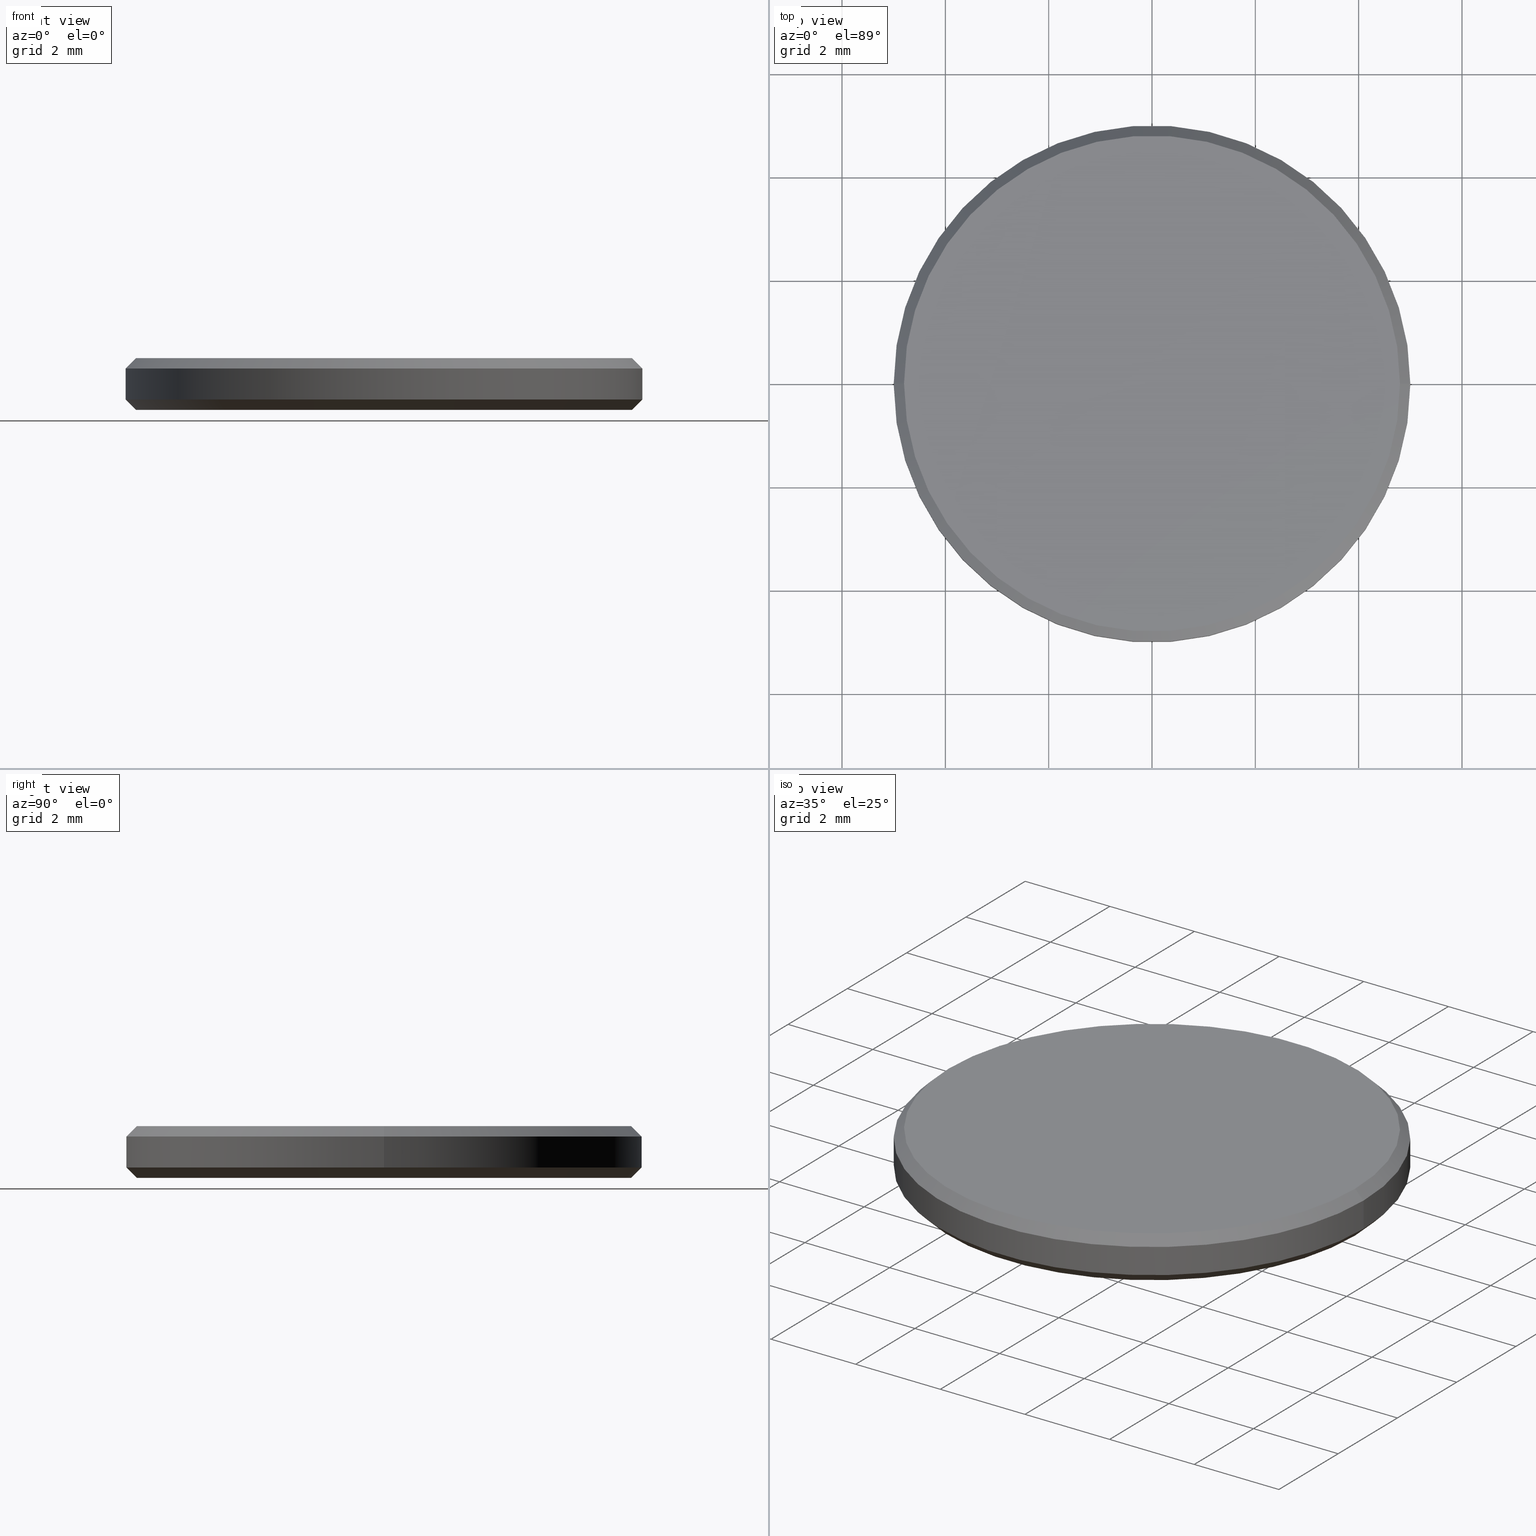
[diagram: canonical four-view strip — front | top / right | iso, engineering-drawing reading convention]
A machine part, canonical four-view strip (front | top / right | iso — engineering-drawing reading convention). The complete STEP part file that produces these views, byte-faithful:
ISO-10303-21;
HEADER;
FILE_DESCRIPTION (( 'STEP AP214' ),
    '1' );
FILE_NAME ('GNIF-070-3860-D10.STEP',
    '2024-07-19T14:40:39',
    ( '' ),
    ( '' ),
    'SwSTEP 2.0',
    'SolidWorks 2022',
    '' );
FILE_SCHEMA (( 'AUTOMOTIVE_DESIGN' ));
ENDSEC;

DATA;
#1 = SHAPE_DEFINITION_REPRESENTATION ( #181, #68 ) ;
#2 = VECTOR ( 'NONE', #190, 1000.000000000000114 ) ;
#3 = AXIS2_PLACEMENT_3D ( 'NONE', #140, #199, #122 ) ;
#4 =( NAMED_UNIT ( * ) SI_UNIT ( $, .STERADIAN. ) SOLID_ANGLE_UNIT ( ) );
#5 = DIRECTION ( 'NONE',  ( 0.7071067811865490160, 0.000000000000000000, 0.7071067811865459074 ) ) ;
#6 = CARTESIAN_POINT ( 'NONE',  ( 0.000000000000000000, 0.000000000000000000, 0.000000000000000000 ) ) ;
#7 = DIRECTION ( 'NONE',  ( 0.000000000000000000, 0.000000000000000000, 1.000000000000000000 ) ) ;
#8 = DIRECTION ( 'NONE',  ( -0.000000000000000000, -0.000000000000000000, -1.000000000000000000 ) ) ;
#9 = ORIENTED_EDGE ( 'NONE', *, *, #73, .F. ) ;
#10 = VECTOR ( 'NONE', #84, 1000.000000000000114 ) ;
#11 = EDGE_CURVE ( 'NONE', #164, #35, #213, .T. ) ;
#12 = DIRECTION ( 'NONE',  ( -0.7071067811865490160, 8.659560562354950115E-17, 0.7071067811865459074 ) ) ;
#13 = DIRECTION ( 'NONE',  ( -1.000000000000000000, 0.000000000000000000, 0.000000000000000000 ) ) ;
#14 = PRODUCT_DEFINITION_CONTEXT ( 'detailed design', #180, 'design' ) ;
#15 = ADVANCED_FACE ( 'NONE', ( #116 ), #16, .T. ) ;
#16 = CONICAL_SURFACE ( 'NONE', #155, 5.000000000000000000, 0.7853981633974503884 ) ;
#17 = DIRECTION ( 'NONE',  ( 1.000000000000000000, 0.000000000000000000, 0.000000000000000000 ) ) ;
#18 = DIRECTION ( 'NONE',  ( 0.000000000000000000, 0.000000000000000000, -1.000000000000000000 ) ) ;
#19 = ORIENTED_EDGE ( 'NONE', *, *, #46, .F. ) ;
#20 = EDGE_CURVE ( 'NONE', #35, #164, #21, .T. ) ;
#21 = CIRCLE ( 'NONE', #65, 5.000000000000000000 ) ;
#22 = ORIENTED_EDGE ( 'NONE', *, *, #223, .T. ) ;
#23 = CARTESIAN_POINT ( 'NONE',  ( 0.000000000000000000, 0.000000000000000000, 1.000000000000000000 ) ) ;
#24 = DIRECTION ( 'NONE',  ( 0.000000000000000000, 0.000000000000000000, 1.000000000000000000 ) ) ;
#25 = LINE ( 'NONE', #134, #10 ) ;
#26 = STYLED_ITEM ( 'NONE', ( #212 ), #205 ) ;
#27 = EDGE_LOOP ( 'NONE', ( #108, #36, #220, #22 ) ) ;
#28 = EDGE_CURVE ( 'NONE', #145, #163, #94, .T. ) ;
#29 = DIRECTION ( 'NONE',  ( 1.000000000000000000, 0.000000000000000000, 0.000000000000000000 ) ) ;
#30 = CARTESIAN_POINT ( 'NONE',  ( 0.000000000000000000, 0.000000000000000000, 1.000000000000000000 ) ) ;
#31 = DIRECTION ( 'NONE',  ( -0.000000000000000000, -0.000000000000000000, 1.000000000000000000 ) ) ;
#32 = FACE_OUTER_BOUND ( 'NONE', #27, .T. ) ;
#33 = AXIS2_PLACEMENT_3D ( 'NONE', #30, #102, #13 ) ;
#34 = CIRCLE ( 'NONE', #193, 4.800000000000002487 ) ;
#35 = VERTEX_POINT ( 'NONE', #45 ) ;
#36 = ORIENTED_EDGE ( 'NONE', *, *, #20, .T. ) ;
#37 = ORIENTED_EDGE ( 'NONE', *, *, #138, .F. ) ;
#38 = VECTOR ( 'NONE', #178, 1000.000000000000000 ) ;
#39 = AXIS2_PLACEMENT_3D ( 'NONE', #153, #150, #173 ) ;
#40 = ORIENTED_EDGE ( 'NONE', *, *, #11, .F. ) ;
#41 = CARTESIAN_POINT ( 'NONE',  ( 0.000000000000000000, 0.000000000000000000, 1.000000000000000000 ) ) ;
#42 =( NAMED_UNIT ( * ) PLANE_ANGLE_UNIT ( ) SI_UNIT ( $, .RADIAN. ) );
#43 = CARTESIAN_POINT ( 'NONE',  ( 0.000000000000000000, 0.000000000000000000, 0.1999999999999996503 ) ) ;
#44 = VECTOR ( 'NONE', #5, 1000.000000000000000 ) ;
#45 = CARTESIAN_POINT ( 'NONE',  ( 5.000000000000000000, 6.123233995736766282E-16, 0.8000000000000012657 ) ) ;
#46 = EDGE_CURVE ( 'NONE', #56, #164, #25, .T. ) ;
#47 = CYLINDRICAL_SURFACE ( 'NONE', #226, 5.000000000000000000 ) ;
#48 = UNCERTAINTY_MEASURE_WITH_UNIT (LENGTH_MEASURE( 1.000000000000000082E-05 ), #139, 'distance_accuracy_value', 'NONE');
#49 = CARTESIAN_POINT ( 'NONE',  ( -4.799999999999999822, 6.000769315822029754E-16, 0.000000000000000000 ) ) ;
#50 = DIRECTION ( 'NONE',  ( 0.000000000000000000, 0.000000000000000000, 1.000000000000000000 ) ) ;
#51 = CARTESIAN_POINT ( 'NONE',  ( 0.000000000000000000, 0.000000000000000000, 1.000000000000000000 ) ) ;
#52 = PRESENTATION_LAYER_ASSIGNMENT (  '', '', ( #26 ) ) ;
#53 =( LENGTH_UNIT ( ) NAMED_UNIT ( * ) SI_UNIT ( .MILLI., .METRE. ) );
#54 = ORIENTED_EDGE ( 'NONE', *, *, #28, .T. ) ;
#55 = PRODUCT_CONTEXT ( 'NONE', #225, 'mechanical' ) ;
#56 = VERTEX_POINT ( 'NONE', #206 ) ;
#57 = MECHANICAL_DESIGN_GEOMETRIC_PRESENTATION_REPRESENTATION (  '', ( #152 ), #105 ) ;
#58 = FILL_AREA_STYLE ('',( #165 ) ) ;
#59 = DIRECTION ( 'NONE',  ( -0.000000000000000000, -0.000000000000000000, 1.000000000000000000 ) ) ;
#60 = APPLICATION_PROTOCOL_DEFINITION ( 'draft international standard', 'automotive_design', 1998, #180 ) ;
#61 = CLOSED_SHELL ( 'NONE', ( #15, #154, #149, #217, #103, #113, #176, #233 ) ) ;
#62 = DIRECTION ( 'NONE',  ( 0.000000000000000000, 0.000000000000000000, -1.000000000000000000 ) ) ;
#63 = EDGE_CURVE ( 'NONE', #145, #128, #101, .T. ) ;
#64 = CIRCLE ( 'NONE', #123, 4.800000000000002487 ) ;
#65 = AXIS2_PLACEMENT_3D ( 'NONE', #81, #62, #99 ) ;
#66 = COLOUR_RGB ( '',1.000000000000000000, 1.000000000000000000, 1.000000000000000000 ) ;
#67 = LINE ( 'NONE', #232, #148 ) ;
#68 = ADVANCED_BREP_SHAPE_REPRESENTATION ( 'GNIF-070-3860-D10', ( #205, #222 ), #127 ) ;
#69 = CARTESIAN_POINT ( 'NONE',  ( -5.000000000000000000, 0.000000000000000000, 0.8000000000000012657 ) ) ;
#70 = UNCERTAINTY_MEASURE_WITH_UNIT (LENGTH_MEASURE( 1.000000000000000082E-05 ), #53, 'distance_accuracy_value', 'NONE');
#71 = CARTESIAN_POINT ( 'NONE',  ( -5.000000000000000000, 0.000000000000000000, 0.1999999999999996503 ) ) ;
#72 = ORIENTED_EDGE ( 'NONE', *, *, #131, .F. ) ;
#73 = EDGE_CURVE ( 'NONE', #164, #201, #169, .T. ) ;
#74 = AXIS2_PLACEMENT_3D ( 'NONE', #227, #7, #115 ) ;
#75 = PRODUCT ( 'GNIF-070-3860-D10', 'GNIF-070-3860-D10', '', ( #55 ) ) ;
#76 = CARTESIAN_POINT ( 'NONE',  ( 0.000000000000000000, 0.000000000000000000, 1.000000000000000000 ) ) ;
#77 = EDGE_LOOP ( 'NONE', ( #79, #239 ) ) ;
#78 = SURFACE_STYLE_USAGE ( .BOTH. , #142 ) ;
#79 = ORIENTED_EDGE ( 'NONE', *, *, #194, .T. ) ;
#80 = CIRCLE ( 'NONE', #207, 5.000000000000000000 ) ;
#81 = CARTESIAN_POINT ( 'NONE',  ( 0.000000000000000000, 0.000000000000000000, 0.8000000000000012657 ) ) ;
#82 = SURFACE_STYLE_USAGE ( .BOTH. , #168 ) ;
#83 = PRODUCT_DEFINITION ( 'δ֪', '', #117, #14 ) ;
#84 = DIRECTION ( 'NONE',  ( -0.7071067811865460184, 0.000000000000000000, -0.7071067811865489050 ) ) ;
#85 = EDGE_LOOP ( 'NONE', ( #54, #240 ) ) ;
#86 = FACE_OUTER_BOUND ( 'NONE', #98, .T. ) ;
#87 = LINE ( 'NONE', #120, #2 ) ;
#88 = PRESENTATION_LAYER_ASSIGNMENT (  '', '', ( #152 ) ) ;
#89 = DIRECTION ( 'NONE',  ( -1.000000000000000000, 0.000000000000000000, 0.000000000000000000 ) ) ;
#90 = CARTESIAN_POINT ( 'NONE',  ( 4.799999999999999822, 0.000000000000000000, 0.000000000000000000 ) ) ;
#91 = CARTESIAN_POINT ( 'NONE',  ( 0.000000000000000000, 0.000000000000000000, 1.000000000000000000 ) ) ;
#92 = EDGE_LOOP ( 'NONE', ( #37, #159, #200, #237 ) ) ;
#93 = ORIENTED_EDGE ( 'NONE', *, *, #194, .F. ) ;
#94 = CIRCLE ( 'NONE', #229, 4.799999999999999822 ) ;
#95 = AXIS2_PLACEMENT_3D ( 'NONE', #216, #195, #17 ) ;
#96 = DIRECTION ( 'NONE',  ( 1.000000000000000000, 0.000000000000000000, 0.000000000000000000 ) ) ;
#97 = EDGE_CURVE ( 'NONE', #163, #145, #177, .T. ) ;
#98 = EDGE_LOOP ( 'NONE', ( #126, #235, #218, #9 ) ) ;
#99 = DIRECTION ( 'NONE',  ( 1.000000000000000000, 0.000000000000000000, 0.000000000000000000 ) ) ;
#100 = AXIS2_PLACEMENT_3D ( 'NONE', #91, #196, #191 ) ;
#101 = LINE ( 'NONE', #118, #44 ) ;
#102 = DIRECTION ( 'NONE',  ( 0.000000000000000000, 0.000000000000000000, -1.000000000000000000 ) ) ;
#103 = ADVANCED_FACE ( 'NONE', ( #228 ), #137, .T. ) ;
#104 = CYLINDRICAL_SURFACE ( 'NONE', #100, 5.000000000000000000 ) ;
#105 =( GEOMETRIC_REPRESENTATION_CONTEXT ( 3 ) GLOBAL_UNCERTAINTY_ASSIGNED_CONTEXT ( ( #189 ) ) GLOBAL_UNIT_ASSIGNED_CONTEXT ( ( #171, #42, #4 ) ) REPRESENTATION_CONTEXT ( 'NONE', 'WORKASPACE' ) );
#106 =( NAMED_UNIT ( * ) SI_UNIT ( $, .STERADIAN. ) SOLID_ANGLE_UNIT ( ) );
#107 = ORIENTED_EDGE ( 'NONE', *, *, #172, .F. ) ;
#108 = ORIENTED_EDGE ( 'NONE', *, *, #204, .F. ) ;
#109 =( NAMED_UNIT ( * ) PLANE_ANGLE_UNIT ( ) SI_UNIT ( $, .RADIAN. ) );
#110 = ORIENTED_EDGE ( 'NONE', *, *, #138, .T. ) ;
#111 = SURFACE_STYLE_FILL_AREA ( #58 ) ;
#112 = ORIENTED_EDGE ( 'NONE', *, *, #63, .F. ) ;
#113 = ADVANCED_FACE ( 'NONE', ( #114 ), #184, .F. ) ;
#114 = FACE_OUTER_BOUND ( 'NONE', #85, .T. ) ;
#115 = DIRECTION ( 'NONE',  ( 1.000000000000000000, 0.000000000000000000, -0.000000000000000000 ) ) ;
#116 = FACE_OUTER_BOUND ( 'NONE', #144, .T. ) ;
#117 = PRODUCT_DEFINITION_FORMATION_WITH_SPECIFIED_SOURCE ( '�κ�', '', #75, .NOT_KNOWN. ) ;
#118 = CARTESIAN_POINT ( 'NONE',  ( 5.000000000000000000, 0.000000000000000000, 0.1999999999999996503 ) ) ;
#119 = DIRECTION ( 'NONE',  ( -1.000000000000000000, 0.000000000000000000, 0.000000000000000000 ) ) ;
#120 = CARTESIAN_POINT ( 'NONE',  ( 4.800000000000002487, 5.878304635907297169E-16, 1.000000000000000000 ) ) ;
#121 = EDGE_CURVE ( 'NONE', #128, #201, #80, .T. ) ;
#122 = DIRECTION ( 'NONE',  ( 1.000000000000000000, 0.000000000000000000, 0.000000000000000000 ) ) ;
#123 = AXIS2_PLACEMENT_3D ( 'NONE', #76, #50, #160 ) ;
#124 =( NAMED_UNIT ( * ) PLANE_ANGLE_UNIT ( ) SI_UNIT ( $, .RADIAN. ) );
#125 = ORIENTED_EDGE ( 'NONE', *, *, #46, .T. ) ;
#126 = ORIENTED_EDGE ( 'NONE', *, *, #11, .T. ) ;
#127 =( GEOMETRIC_REPRESENTATION_CONTEXT ( 3 ) GLOBAL_UNCERTAINTY_ASSIGNED_CONTEXT ( ( #70 ) ) GLOBAL_UNIT_ASSIGNED_CONTEXT ( ( #53, #109, #106 ) ) REPRESENTATION_CONTEXT ( 'NONE', 'WORKASPACE' ) );
#128 = VERTEX_POINT ( 'NONE', #211 ) ;
#129 = CARTESIAN_POINT ( 'NONE',  ( -5.000000000000000000, 0.000000000000000000, 1.000000000000000000 ) ) ;
#130 = PRESENTATION_STYLE_ASSIGNMENT (( #82 ) ) ;
#131 = EDGE_CURVE ( 'NONE', #183, #56, #34, .T. ) ;
#132 = DIRECTION ( 'NONE',  ( 1.000000000000000000, 0.000000000000000000, 0.000000000000000000 ) ) ;
#133 = DIRECTION ( 'NONE',  ( 1.000000000000000000, 0.000000000000000000, 0.000000000000000000 ) ) ;
#134 = CARTESIAN_POINT ( 'NONE',  ( -4.800000000000002487, 0.000000000000000000, 1.000000000000000000 ) ) ;
#135 = CONICAL_SURFACE ( 'NONE', #33, 4.800000000000002487, 0.7853981633974461696 ) ;
#136 = AXIS2_PLACEMENT_3D ( 'NONE', #23, #167, #208 ) ;
#137 = PLANE ( 'NONE',  #136 ) ;
#138 = EDGE_CURVE ( 'NONE', #163, #201, #67, .T. ) ;
#139 =( LENGTH_UNIT ( ) NAMED_UNIT ( * ) SI_UNIT ( .MILLI., .METRE. ) );
#140 = CARTESIAN_POINT ( 'NONE',  ( 0.000000000000000000, 0.000000000000000000, 0.1999999999999996503 ) ) ;
#141 = ORIENTED_EDGE ( 'NONE', *, *, #97, .F. ) ;
#142 = SURFACE_SIDE_STYLE ('',( #238 ) ) ;
#143 = VECTOR ( 'NONE', #186, 1000.000000000000000 ) ;
#144 = EDGE_LOOP ( 'NONE', ( #141, #110, #147, #112 ) ) ;
#145 = VERTEX_POINT ( 'NONE', #90 ) ;
#146 = DIRECTION ( 'NONE',  ( 1.000000000000000000, 0.000000000000000000, 0.000000000000000000 ) ) ;
#147 = ORIENTED_EDGE ( 'NONE', *, *, #121, .F. ) ;
#148 = VECTOR ( 'NONE', #12, 1000.000000000000000 ) ;
#149 = ADVANCED_FACE ( 'NONE', ( #86 ), #47, .T. ) ;
#150 = DIRECTION ( 'NONE',  ( -0.000000000000000000, -0.000000000000000000, -1.000000000000000000 ) ) ;
#151 = CONICAL_SURFACE ( 'NONE', #192, 4.800000000000002487, 0.7853981633974461696 ) ;
#152 = STYLED_ITEM ( 'NONE', ( #130 ), #68 ) ;
#153 = CARTESIAN_POINT ( 'NONE',  ( 0.000000000000000000, 0.000000000000000000, 0.000000000000000000 ) ) ;
#154 = ADVANCED_FACE ( 'NONE', ( #188 ), #135, .T. ) ;
#155 = AXIS2_PLACEMENT_3D ( 'NONE', #43, #59, #133 ) ;
#156 = DIRECTION ( 'NONE',  ( -0.000000000000000000, -0.000000000000000000, -1.000000000000000000 ) ) ;
#157 = COLOUR_RGB ( '',1.000000000000000000, 1.000000000000000000, 1.000000000000000000 ) ;
#158 = LINE ( 'NONE', #162, #38 ) ;
#159 = ORIENTED_EDGE ( 'NONE', *, *, #28, .F. ) ;
#160 = DIRECTION ( 'NONE',  ( 1.000000000000000000, 0.000000000000000000, 0.000000000000000000 ) ) ;
#161 = ORIENTED_EDGE ( 'NONE', *, *, #172, .T. ) ;
#162 = CARTESIAN_POINT ( 'NONE',  ( 5.000000000000000000, 6.123233995736766282E-16, 1.000000000000000000 ) ) ;
#163 = VERTEX_POINT ( 'NONE', #49 ) ;
#164 = VERTEX_POINT ( 'NONE', #69 ) ;
#165 = FILL_AREA_STYLE_COLOUR ( '', #157 ) ;
#166 =( GEOMETRIC_REPRESENTATION_CONTEXT ( 3 ) GLOBAL_UNCERTAINTY_ASSIGNED_CONTEXT ( ( #48 ) ) GLOBAL_UNIT_ASSIGNED_CONTEXT ( ( #139, #124, #210 ) ) REPRESENTATION_CONTEXT ( 'NONE', 'WORKASPACE' ) );
#167 = DIRECTION ( 'NONE',  ( 0.000000000000000000, 0.000000000000000000, 1.000000000000000000 ) ) ;
#168 = SURFACE_SIDE_STYLE ('',( #111 ) ) ;
#169 = LINE ( 'NONE', #129, #143 ) ;
#170 = CARTESIAN_POINT ( 'NONE',  ( 0.000000000000000000, 0.000000000000000000, 0.000000000000000000 ) ) ;
#171 =( LENGTH_UNIT ( ) NAMED_UNIT ( * ) SI_UNIT ( .MILLI., .METRE. ) );
#172 = EDGE_CURVE ( 'NONE', #183, #35, #87, .T. ) ;
#173 = DIRECTION ( 'NONE',  ( 1.000000000000000000, 0.000000000000000000, 0.000000000000000000 ) ) ;
#174 = MECHANICAL_DESIGN_GEOMETRIC_PRESENTATION_REPRESENTATION (  '', ( #26 ), #166 ) ;
#175 = DIRECTION ( 'NONE',  ( 1.000000000000000000, 0.000000000000000000, 0.000000000000000000 ) ) ;
#176 = ADVANCED_FACE ( 'NONE', ( #202 ), #151, .T. ) ;
#177 = CIRCLE ( 'NONE', #39, 4.799999999999999822 ) ;
#178 = DIRECTION ( 'NONE',  ( -0.000000000000000000, -0.000000000000000000, -1.000000000000000000 ) ) ;
#179 = CARTESIAN_POINT ( 'NONE',  ( 4.800000000000002487, 6.000769315822031726E-16, 1.000000000000000000 ) ) ;
#180 = APPLICATION_CONTEXT ( 'automotive_design' ) ;
#181 = PRODUCT_DEFINITION_SHAPE ( 'NONE', 'NONE',  #83 ) ;
#182 = EDGE_LOOP ( 'NONE', ( #107, #93, #125, #215 ) ) ;
#183 = VERTEX_POINT ( 'NONE', #179 ) ;
#184 = PLANE ( 'NONE',  #74 ) ;
#185 = CARTESIAN_POINT ( 'NONE',  ( 0.000000000000000000, 0.000000000000000000, 0.1999999999999996503 ) ) ;
#186 = DIRECTION ( 'NONE',  ( -0.000000000000000000, -0.000000000000000000, -1.000000000000000000 ) ) ;
#187 = DIRECTION ( 'NONE',  ( 0.000000000000000000, 0.000000000000000000, 1.000000000000000000 ) ) ;
#188 = FACE_OUTER_BOUND ( 'NONE', #197, .T. ) ;
#189 = UNCERTAINTY_MEASURE_WITH_UNIT (LENGTH_MEASURE( 1.000000000000000082E-05 ), #171, 'distance_accuracy_value', 'NONE');
#190 = DIRECTION ( 'NONE',  ( 0.7071067811865460184, 8.659560562354913137E-17, -0.7071067811865489050 ) ) ;
#191 = DIRECTION ( 'NONE',  ( -1.000000000000000000, 0.000000000000000000, 0.000000000000000000 ) ) ;
#192 = AXIS2_PLACEMENT_3D ( 'NONE', #41, #18, #89 ) ;
#193 = AXIS2_PLACEMENT_3D ( 'NONE', #209, #187, #175 ) ;
#194 = EDGE_CURVE ( 'NONE', #56, #183, #64, .T. ) ;
#195 = DIRECTION ( 'NONE',  ( -0.000000000000000000, -0.000000000000000000, 1.000000000000000000 ) ) ;
#196 = DIRECTION ( 'NONE',  ( -0.000000000000000000, -0.000000000000000000, -1.000000000000000000 ) ) ;
#197 = EDGE_LOOP ( 'NONE', ( #72, #161, #40, #19 ) ) ;
#198 = PRODUCT_RELATED_PRODUCT_CATEGORY ( 'part', '', ( #75 ) ) ;
#199 = DIRECTION ( 'NONE',  ( -0.000000000000000000, -0.000000000000000000, 1.000000000000000000 ) ) ;
#200 = ORIENTED_EDGE ( 'NONE', *, *, #63, .T. ) ;
#201 = VERTEX_POINT ( 'NONE', #71 ) ;
#202 = FACE_OUTER_BOUND ( 'NONE', #182, .T. ) ;
#203 = DIRECTION ( 'NONE',  ( 0.000000000000000000, 0.000000000000000000, -1.000000000000000000 ) ) ;
#204 = EDGE_CURVE ( 'NONE', #35, #128, #158, .T. ) ;
#205 = MANIFOLD_SOLID_BREP ( '����1', #61 ) ;
#206 = CARTESIAN_POINT ( 'NONE',  ( -4.800000000000002487, 0.000000000000000000, 1.000000000000000000 ) ) ;
#207 = AXIS2_PLACEMENT_3D ( 'NONE', #185, #31, #29 ) ;
#208 = DIRECTION ( 'NONE',  ( 1.000000000000000000, 0.000000000000000000, -0.000000000000000000 ) ) ;
#209 = CARTESIAN_POINT ( 'NONE',  ( 0.000000000000000000, 0.000000000000000000, 1.000000000000000000 ) ) ;
#210 =( NAMED_UNIT ( * ) SI_UNIT ( $, .STERADIAN. ) SOLID_ANGLE_UNIT ( ) );
#211 = CARTESIAN_POINT ( 'NONE',  ( 5.000000000000000000, 6.123233995736766282E-16, 0.1999999999999996503 ) ) ;
#212 = PRESENTATION_STYLE_ASSIGNMENT (( #78 ) ) ;
#213 = CIRCLE ( 'NONE', #221, 5.000000000000000000 ) ;
#214 = FACE_OUTER_BOUND ( 'NONE', #92, .T. ) ;
#215 = ORIENTED_EDGE ( 'NONE', *, *, #20, .F. ) ;
#216 = CARTESIAN_POINT ( 'NONE',  ( 0.000000000000000000, 0.000000000000000000, 0.1999999999999996503 ) ) ;
#217 = ADVANCED_FACE ( 'NONE', ( #32 ), #104, .T. ) ;
#218 = ORIENTED_EDGE ( 'NONE', *, *, #121, .T. ) ;
#219 = APPLICATION_PROTOCOL_DEFINITION ( 'draft international standard', 'automotive_design', 1998, #225 ) ;
#220 = ORIENTED_EDGE ( 'NONE', *, *, #73, .T. ) ;
#221 = AXIS2_PLACEMENT_3D ( 'NONE', #224, #203, #132 ) ;
#222 = AXIS2_PLACEMENT_3D ( 'NONE', #170, #24, #146 ) ;
#223 = EDGE_CURVE ( 'NONE', #201, #128, #231, .T. ) ;
#224 = CARTESIAN_POINT ( 'NONE',  ( 0.000000000000000000, 0.000000000000000000, 0.8000000000000012657 ) ) ;
#225 = APPLICATION_CONTEXT ( 'automotive_design' ) ;
#226 = AXIS2_PLACEMENT_3D ( 'NONE', #51, #156, #119 ) ;
#227 = CARTESIAN_POINT ( 'NONE',  ( 0.000000000000000000, 0.000000000000000000, 0.000000000000000000 ) ) ;
#228 = FACE_OUTER_BOUND ( 'NONE', #77, .T. ) ;
#229 = AXIS2_PLACEMENT_3D ( 'NONE', #6, #8, #96 ) ;
#230 = CONICAL_SURFACE ( 'NONE', #95, 5.000000000000000000, 0.7853981633974503884 ) ;
#231 = CIRCLE ( 'NONE', #3, 5.000000000000000000 ) ;
#232 = CARTESIAN_POINT ( 'NONE',  ( -5.000000000000000000, 6.123233995736765296E-16, 0.1999999999999996503 ) ) ;
#233 = ADVANCED_FACE ( 'NONE', ( #214 ), #230, .T. ) ;
#234 = FILL_AREA_STYLE ('',( #236 ) ) ;
#235 = ORIENTED_EDGE ( 'NONE', *, *, #204, .T. ) ;
#236 = FILL_AREA_STYLE_COLOUR ( '', #66 ) ;
#237 = ORIENTED_EDGE ( 'NONE', *, *, #223, .F. ) ;
#238 = SURFACE_STYLE_FILL_AREA ( #234 ) ;
#239 = ORIENTED_EDGE ( 'NONE', *, *, #131, .T. ) ;
#240 = ORIENTED_EDGE ( 'NONE', *, *, #97, .T. ) ;
ENDSEC;
END-ISO-10303-21;
